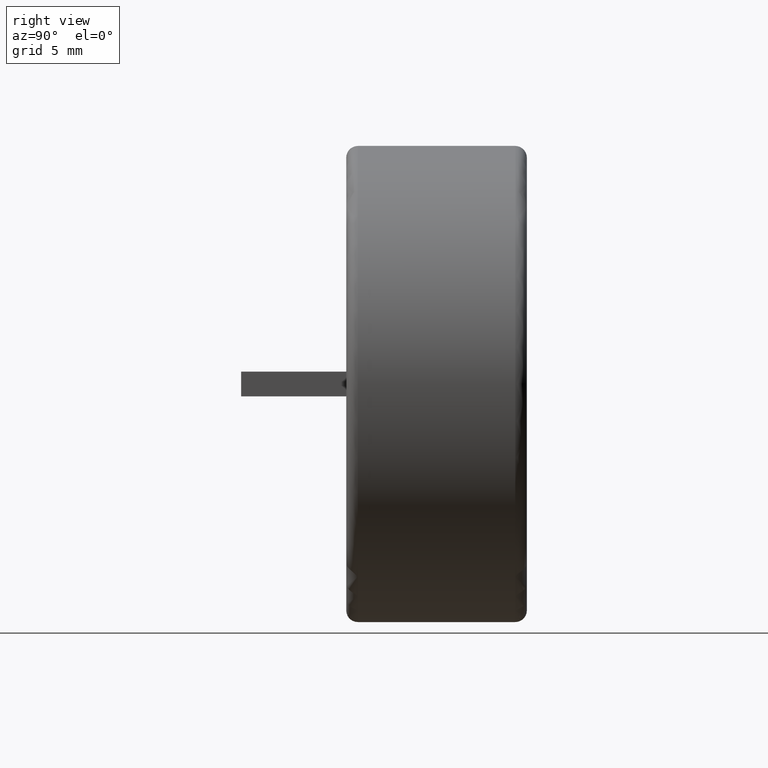
[diagram: clean part render]
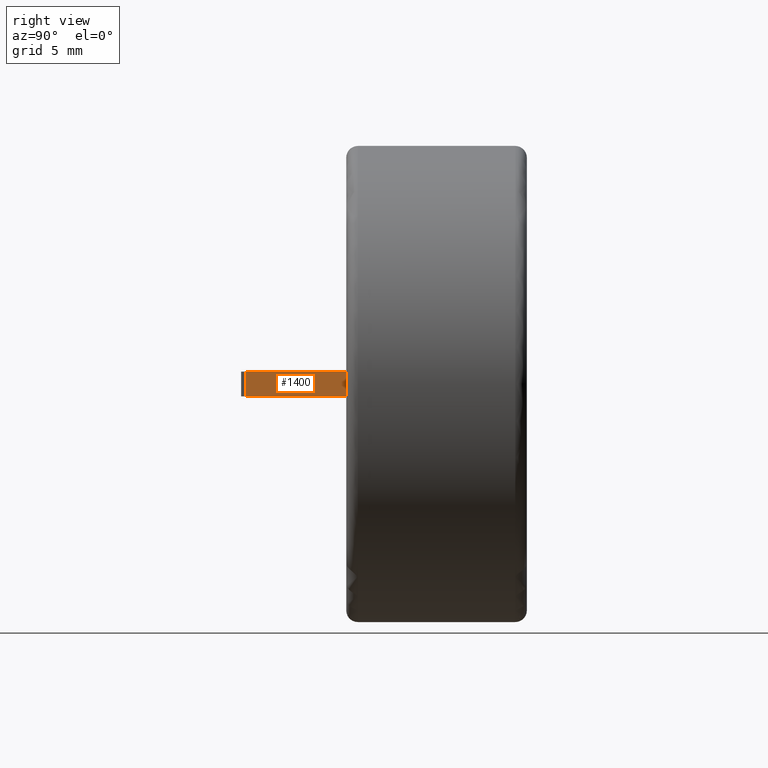
[diagram: same view with one face highlighted and labeled with its STEP entity id]
A machine part, right view. The second image highlights one B-rep face of the part: STEP entity #1400.
In plain terms, the highlighted planar face has unit normal (-1, 0, 0).
Its self-contained STEP definition (entity closure, byte-faithful):
#7 = CARTESIAN_POINT ( 'NONE',  ( 5.430000000000000600, -6.099999999999999600, -3.363107040967833000E-015 ) ) ;
#206 = PLANE ( 'NONE',  #321 ) ;
#286 = CARTESIAN_POINT ( 'NONE',  ( 5.430000000000000600, -6.099999999999999600, -0.7500000000000033300 ) ) ;
#321 = AXIS2_PLACEMENT_3D ( 'NONE', #7, #2557, #2549 ) ;
#460 = LINE ( 'NONE', #286, #1997 ) ;
#516 = EDGE_LOOP ( 'NONE', ( #2284, #1355, #2506, #2429 ) ) ;
#599 = CARTESIAN_POINT ( 'NONE',  ( 5.430000000000000600, -6.099999999999999600, 0.7499999999999966700 ) ) ;
#753 = CARTESIAN_POINT ( 'NONE',  ( 5.430000000000000600, -6.099999999999999600, -0.7500000000000033300 ) ) ;
#939 = CARTESIAN_POINT ( 'NONE',  ( 5.430000000000000600, -6.099999999999999600, 0.7499999999999966700 ) ) ;
#1078 = LINE ( 'NONE', #2522, #1349 ) ;
#1088 = VERTEX_POINT ( 'NONE', #1821 ) ;
#1142 = LINE ( 'NONE', #2732, #1800 ) ;
#1159 = EDGE_CURVE ( 'NONE', #2272, #1088, #1078, .T. ) ;
#1342 = EDGE_CURVE ( 'NONE', #2219, #2627, #1142, .T. ) ;
#1349 = VECTOR ( 'NONE', #2163, 1000.000000000000000 ) ;
#1355 = ORIENTED_EDGE ( 'NONE', *, *, #2350, .F. ) ;
#1400 = ADVANCED_FACE ( 'NONE', ( #2177 ), #206, .F. ) ;
#1503 = CARTESIAN_POINT ( 'NONE',  ( 5.430000000000000600, 0.0000000000000000000, -0.7500000000000033300 ) ) ;
#1800 = VECTOR ( 'NONE', #2302, 1000.000000000000000 ) ;
#1821 = CARTESIAN_POINT ( 'NONE',  ( 5.430000000000000600, 0.0000000000000000000, 0.7499999999999966700 ) ) ;
#1876 = LINE ( 'NONE', #599, #2386 ) ;
#1913 = EDGE_CURVE ( 'NONE', #2219, #2272, #460, .T. ) ;
#1997 = VECTOR ( 'NONE', #2380, 1000.000000000000000 ) ;
#2163 = DIRECTION ( 'NONE',  ( 0.0000000000000000000, 0.0000000000000000000, 1.000000000000000000 ) ) ;
#2177 = FACE_OUTER_BOUND ( 'NONE', #516, .T. ) ;
#2219 = VERTEX_POINT ( 'NONE', #753 ) ;
#2272 = VERTEX_POINT ( 'NONE', #1503 ) ;
#2284 = ORIENTED_EDGE ( 'NONE', *, *, #1159, .T. ) ;
#2302 = DIRECTION ( 'NONE',  ( 0.0000000000000000000, 0.0000000000000000000, 1.000000000000000000 ) ) ;
#2307 = DIRECTION ( 'NONE',  ( -0.0000000000000000000, 1.000000000000000000, -0.0000000000000000000 ) ) ;
#2350 = EDGE_CURVE ( 'NONE', #2627, #1088, #1876, .T. ) ;
#2380 = DIRECTION ( 'NONE',  ( -0.0000000000000000000, 1.000000000000000000, -0.0000000000000000000 ) ) ;
#2386 = VECTOR ( 'NONE', #2307, 1000.000000000000000 ) ;
#2429 = ORIENTED_EDGE ( 'NONE', *, *, #1913, .T. ) ;
#2506 = ORIENTED_EDGE ( 'NONE', *, *, #1342, .F. ) ;
#2522 = CARTESIAN_POINT ( 'NONE',  ( 5.430000000000000600, 0.0000000000000000000, -3.363107040967833000E-015 ) ) ;
#2549 = DIRECTION ( 'NONE',  ( 0.0000000000000000000, 0.0000000000000000000, 1.000000000000000000 ) ) ;
#2557 = DIRECTION ( 'NONE',  ( -1.000000000000000000, 0.0000000000000000000, 0.0000000000000000000 ) ) ;
#2627 = VERTEX_POINT ( 'NONE', #939 ) ;
#2732 = CARTESIAN_POINT ( 'NONE',  ( 5.430000000000000600, -6.099999999999999600, -0.7500000000000033300 ) ) ;